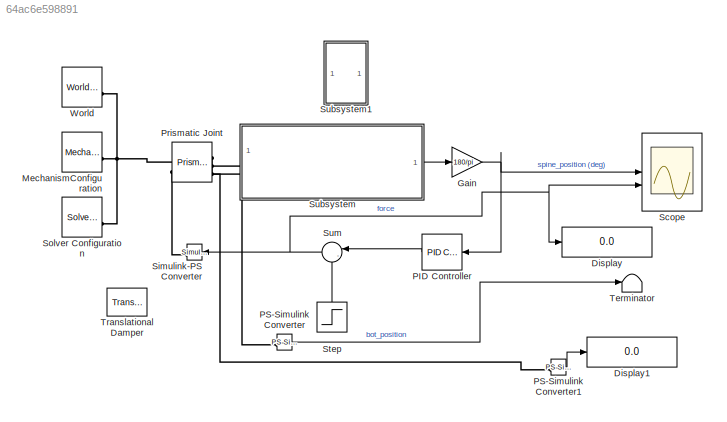
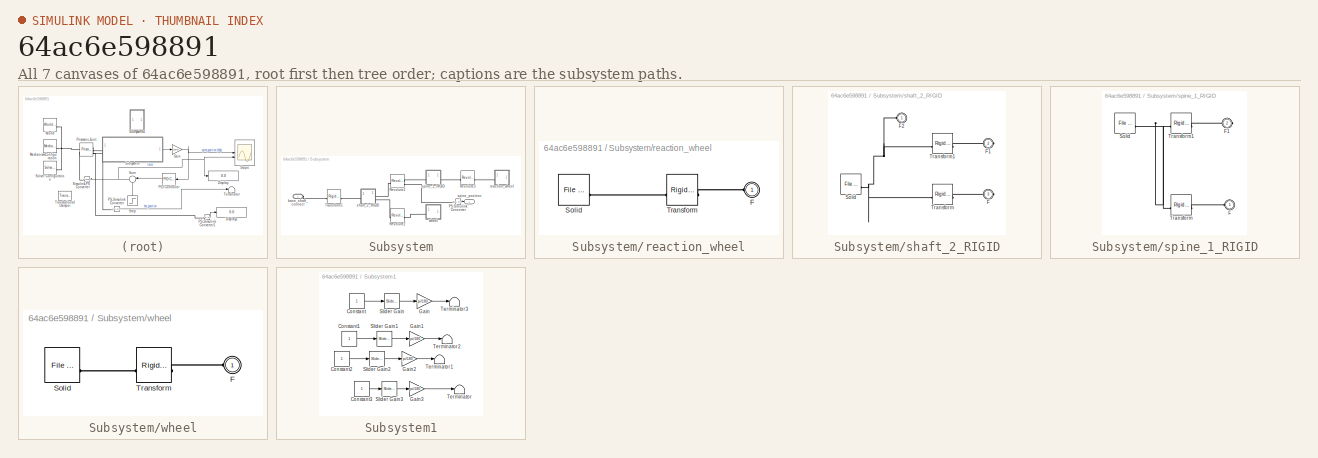
[diagram: thumbnail index - all 7 canvases of the model, root first then tree order]
MODEL slx_64ac6e598891
KIND model
CONFIG AbsTol = auto
CONFIG EnableMultiTasking = off
CONFIG FixedStep = auto
CONFIG MaxStep = auto
CONFIG MinStep = auto
CONFIG RelTol = 1e-3
CONFIG SampleTimeConstraint = Unconstrained
CONFIG SolverName = VariableStepAuto
CONFIG StartTime = 0.0
CONFIG StopTime = 1
WORKSPACE source: external: MATLAB File  (data not in archive)
BLOCK [Display] Display
  Decimation = 1
BLOCK [Display] Display1
  Decimation = 1
BLOCK [Gain] Gain
  Gain = 180/pi
BLOCK [Reference] MechanismConfiguration  REF=sm_lib/Utilities/Mechanism
Configuration
  SourceBlock = sm_lib/Utilities/Mechanism\nConfiguration
  SourceType = Mechanism\nConfiguration
BLOCK [Reference] PID Controller  REF=slpidlib/PID Controller
  LibrarySourceBlock = simulink/Continuous/PID Controller
  NameLocation = top
  SourceBlock = slpidlib/PID Controller
  SourceType = PID 1dof
BLOCK [Reference] PS-Simulink Converter  REF=nesl_utility/PS-Simulink
Converter
  SourceBlock = nesl_utility/PS-Simulink\nConverter
  SourceType = PS-Simulink\nConverter
BLOCK [Reference] PS-Simulink Converter1  REF=nesl_utility/PS-Simulink
Converter
  SourceBlock = nesl_utility/PS-Simulink\nConverter
  SourceType = PS-Simulink\nConverter
BLOCK [Reference] Prismatic Joint  REF=sm_lib/Joints/Prismatic
Joint
  SourceBlock = sm_lib/Joints/Prismatic\nJoint
  SourceType = Prismatic\nJoint
BLOCK [Scope] Scope
  Floating = off
  NumInputPorts = 2
  ScopeSpecificationString = Simulink.scopes.TimeScopeBlockCfg('CurrentConfiguration', extmgr.ConfigurationSet(extmgr.Configuration('Core','General UI',true),extmgr.Configuration('Core','Source UI',true),extmgr.Configuration('Sources','WiredSimulink',true),extmgr.Configuration('Visuals','Time Domain',true,'SerializedDisplays',{struct('MinYLimReal','-1.01512','MaxYLimReal','0.66547','YLabelReal','','MinYLimMag','0.00000','MaxY...<+1348ch>
BLOCK [Reference] Simulink-PS Converter  REF=nesl_utility/Simulink-PS
Converter
  NameLocation = top
  SourceBlock = nesl_utility/Simulink-PS\nConverter
  SourceType = Simulink-PS\nConverter
BLOCK [Reference] Solver Configuration  REF=nesl_utility/Solver
Configuration
  SourceBlock = nesl_utility/Solver\nConfiguration
  SourceType = Solver\nConfiguration
BLOCK [Step] Step
  After = 0.5
  NameLocation = right
  SampleTime = 0
  Time = 0.001
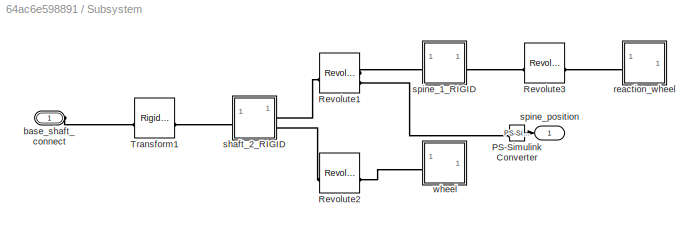
BLOCK [SubSystem] Subsystem
BLOCK [Reference] Subsystem/PS-Simulink Converter  REF=nesl_utility/PS-Simulink
Converter
  SourceBlock = nesl_utility/PS-Simulink\nConverter
  SourceType = PS-Simulink\nConverter
BLOCK [Reference] Subsystem/Revolute1  REF=sm_lib/Joints/Revolute Joint
  SourceBlock = sm_lib/Joints/Revolute Joint
  SourceType = Revolute Joint
BLOCK [Reference] Subsystem/Revolute2  REF=sm_lib/Joints/Revolute Joint
  SourceBlock = sm_lib/Joints/Revolute Joint
  SourceType = Revolute Joint
BLOCK [Reference] Subsystem/Revolute3  REF=sm_lib/Joints/Revolute Joint
  SourceBlock = sm_lib/Joints/Revolute Joint
  SourceType = Revolute Joint
BLOCK [Reference] Subsystem/Transform1  REF=sm_lib/Frames and
Transforms/Rigid
Transform
  SourceBlock = sm_lib/Frames and\nTransforms/Rigid\nTransform
  SourceType = Rigid\nTransform
BLOCK [PMIOPort] Subsystem/base_shaft_connect
  Side = Left
BLOCK [SubSystem] Subsystem/reaction_wheel
BLOCK [PMIOPort] Subsystem/reaction_wheel/F
  Side = Left
BLOCK [Reference] Subsystem/reaction_wheel/Solid  REF=sm_lib/Body Elements/File Solid
  SourceBlock = sm_lib/Body Elements/File Solid
  SourceType = File Solid
BLOCK [Reference] Subsystem/reaction_wheel/Transform  REF=sm_lib/Frames and
Transforms/Rigid
Transform
  SourceBlock = sm_lib/Frames and\nTransforms/Rigid\nTransform
  SourceType = Rigid\nTransform
BLOCK [SubSystem] Subsystem/shaft_2_RIGID
BLOCK [PMIOPort] Subsystem/shaft_2_RIGID/F
  Port = 3
  Side = Right
BLOCK [PMIOPort] Subsystem/shaft_2_RIGID/F1
  Port = 2
  Side = Right
BLOCK [PMIOPort] Subsystem/shaft_2_RIGID/F2
  Side = Left
BLOCK [Reference] Subsystem/shaft_2_RIGID/Solid  REF=sm_lib/Body Elements/File Solid
  SourceBlock = sm_lib/Body Elements/File Solid
  SourceType = File Solid
BLOCK [Reference] Subsystem/shaft_2_RIGID/Transform  REF=sm_lib/Frames and
Transforms/Rigid
Transform
  SourceBlock = sm_lib/Frames and\nTransforms/Rigid\nTransform
  SourceType = Rigid\nTransform
BLOCK [Reference] Subsystem/shaft_2_RIGID/Transform1  REF=sm_lib/Frames and
Transforms/Rigid
Transform
  SourceBlock = sm_lib/Frames and\nTransforms/Rigid\nTransform
  SourceType = Rigid\nTransform
BLOCK [SubSystem] Subsystem/spine_1_RIGID
BLOCK [PMIOPort] Subsystem/spine_1_RIGID/F
  Side = Left
BLOCK [PMIOPort] Subsystem/spine_1_RIGID/F1
  Port = 2
  Side = Right
BLOCK [Reference] Subsystem/spine_1_RIGID/Solid  REF=sm_lib/Body Elements/File Solid
  SourceBlock = sm_lib/Body Elements/File Solid
  SourceType = File Solid
BLOCK [Reference] Subsystem/spine_1_RIGID/Transform  REF=sm_lib/Frames and
Transforms/Rigid
Transform
  SourceBlock = sm_lib/Frames and\nTransforms/Rigid\nTransform
  SourceType = Rigid\nTransform
BLOCK [Reference] Subsystem/spine_1_RIGID/Transform1  REF=sm_lib/Frames and
Transforms/Rigid
Transform
  SourceBlock = sm_lib/Frames and\nTransforms/Rigid\nTransform
  SourceType = Rigid\nTransform
BLOCK [Outport] Subsystem/spine_position
BLOCK [SubSystem] Subsystem/wheel
BLOCK [PMIOPort] Subsystem/wheel/F
  Side = Left
BLOCK [Reference] Subsystem/wheel/Solid  REF=sm_lib/Body Elements/File Solid
  SourceBlock = sm_lib/Body Elements/File Solid
  SourceType = File Solid
BLOCK [Reference] Subsystem/wheel/Transform  REF=sm_lib/Frames and
Transforms/Rigid
Transform
  SourceBlock = sm_lib/Frames and\nTransforms/Rigid\nTransform
  SourceType = Rigid\nTransform
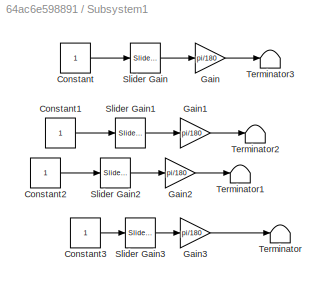
BLOCK [SubSystem] Subsystem1
BLOCK [Constant] Subsystem1/Constant
BLOCK [Constant] Subsystem1/Constant1
BLOCK [Constant] Subsystem1/Constant2
BLOCK [Constant] Subsystem1/Constant3
BLOCK [Gain] Subsystem1/Gain
  Gain = pi/180
BLOCK [Gain] Subsystem1/Gain1
  Gain = pi/180
BLOCK [Gain] Subsystem1/Gain2
  Gain = pi/180
BLOCK [Gain] Subsystem1/Gain3
  Gain = pi/180
BLOCK [Reference] Subsystem1/Slider Gain  REF=simulink/Math
Operations/Slider
Gain
  SourceBlock = simulink/Math\nOperations/Slider\nGain
  SourceType = Slider Gain
BLOCK [Reference] Subsystem1/Slider Gain1  REF=simulink/Math
Operations/Slider
Gain
  SourceBlock = simulink/Math\nOperations/Slider\nGain
  SourceType = Slider Gain
BLOCK [Reference] Subsystem1/Slider Gain2  REF=simulink/Math
Operations/Slider
Gain
  SourceBlock = simulink/Math\nOperations/Slider\nGain
  SourceType = Slider Gain
BLOCK [Reference] Subsystem1/Slider Gain3  REF=simulink/Math
Operations/Slider
Gain
  SourceBlock = simulink/Math\nOperations/Slider\nGain
  SourceType = Slider Gain
BLOCK [Terminator] Subsystem1/Terminator
BLOCK [Terminator] Subsystem1/Terminator1
BLOCK [Terminator] Subsystem1/Terminator2
BLOCK [Terminator] Subsystem1/Terminator3
BLOCK [Sum] Sum
  Inputs = |-+
  NameLocation = top
BLOCK [Terminator] Terminator
BLOCK [Reference] Translational Damper  REF=sdl_lib/Couplings & Drives/Springs & Dampers/Translational Damper
  SourceBlock = sdl_lib/Couplings & Drives/Springs & Dampers/Translational Damper
  SourceType = Translational Damper
BLOCK [Reference] World  REF=sm_lib/Frames and
Transforms/World Frame
  SourceBlock = sm_lib/Frames and\nTransforms/World Frame
  SourceType = World Frame
NET Gain:1 -> PID Controller:1, Scope:1
LINE PID Controller:1 -> Sum:1
LINE PS-Simulink Converter1:1 -> Display1:1
LINE PS-Simulink Converter:1 -> Terminator:1
LINE Step:1 -> Sum:2
LINE Subsystem/PS-Simulink Converter:1 -> Subsystem/spine_position:1
LINE Subsystem1/Constant1:1 -> Subsystem1/Slider Gain1:1
LINE Subsystem1/Constant2:1 -> Subsystem1/Slider Gain2:1
LINE Subsystem1/Constant3:1 -> Subsystem1/Slider Gain3:1
LINE Subsystem1/Constant:1 -> Subsystem1/Slider Gain:1
LINE Subsystem1/Gain1:1 -> Subsystem1/Terminator2:1
LINE Subsystem1/Gain2:1 -> Subsystem1/Terminator1:1
LINE Subsystem1/Gain3:1 -> Subsystem1/Terminator:1
LINE Subsystem1/Gain:1 -> Subsystem1/Terminator3:1
LINE Subsystem1/Slider Gain1:1 -> Subsystem1/Gain1:1
LINE Subsystem1/Slider Gain2:1 -> Subsystem1/Gain2:1
LINE Subsystem1/Slider Gain3:1 -> Subsystem1/Gain3:1
LINE Subsystem1/Slider Gain:1 -> Subsystem1/Gain:1
LINE Subsystem:1 -> Gain:1
NET Sum:1 -> Display:1, Scope:2, Simulink-PS Converter:1
PNET net1: MechanismConfiguration:RConn1 -- Prismatic Joint:LConn1 -- Solver Configuration:RConn1 -- World:RConn1
PLINE PS-Simulink Converter1:LConn1 -- Prismatic Joint:RConn3
PLINE PS-Simulink Converter:LConn1 -- Prismatic Joint:RConn2
PLINE Prismatic Joint:LConn2 -- Simulink-PS Converter:RConn1
PLINE Prismatic Joint:RConn1 -- Subsystem:LConn1
PLINE Subsystem/PS-Simulink Converter:LConn1 -- Subsystem/Revolute1:RConn2
PLINE Subsystem/Revolute1:LConn1 -- Subsystem/shaft_2_RIGID:RConn1
PLINE Subsystem/Revolute1:RConn1 -- Subsystem/spine_1_RIGID:LConn1
PLINE Subsystem/Revolute2:LConn1 -- Subsystem/shaft_2_RIGID:RConn2
PLINE Subsystem/Revolute2:RConn1 -- Subsystem/wheel:LConn1
PLINE Subsystem/Revolute3:LConn1 -- Subsystem/spine_1_RIGID:RConn1
PLINE Subsystem/Revolute3:RConn1 -- Subsystem/reaction_wheel:LConn1
PLINE Subsystem/Transform1:LConn1 -- Subsystem/base_shaft_connect:RConn1
PLINE Subsystem/Transform1:RConn1 -- Subsystem/shaft_2_RIGID:LConn1
PLINE Subsystem/reaction_wheel/F:RConn1 -- Subsystem/reaction_wheel/Transform:RConn1
PLINE Subsystem/reaction_wheel/Solid:RConn1 -- Subsystem/reaction_wheel/Transform:LConn1
PLINE Subsystem/shaft_2_RIGID/F1:RConn1 -- Subsystem/shaft_2_RIGID/Transform1:RConn1
PNET net2: Subsystem/shaft_2_RIGID/F2:RConn1 -- Subsystem/shaft_2_RIGID/Solid:RConn1 -- Subsystem/shaft_2_RIGID/Transform1:LConn1 -- Subsystem/shaft_2_RIGID/Transform:LConn1
PLINE Subsystem/shaft_2_RIGID/F:RConn1 -- Subsystem/shaft_2_RIGID/Transform:RConn1
PLINE Subsystem/spine_1_RIGID/F1:RConn1 -- Subsystem/spine_1_RIGID/Transform1:RConn1
PLINE Subsystem/spine_1_RIGID/F:RConn1 -- Subsystem/spine_1_RIGID/Transform:RConn1
PNET net3: Subsystem/spine_1_RIGID/Solid:RConn1 -- Subsystem/spine_1_RIGID/Transform1:LConn1 -- Subsystem/spine_1_RIGID/Transform:LConn1
PLINE Subsystem/wheel/F:RConn1 -- Subsystem/wheel/Transform:RConn1
PLINE Subsystem/wheel/Solid:RConn1 -- Subsystem/wheel/Transform:LConn1
note: NET lines group one-source signal fan-out (src -> all destinations, sorted); 1:1 wires keep LINE; PNET lines group multi-terminal physical nets as a canonical sorted terminal list (undirected conserving connections); 2-terminal nets keep the pairwise PLINE form
